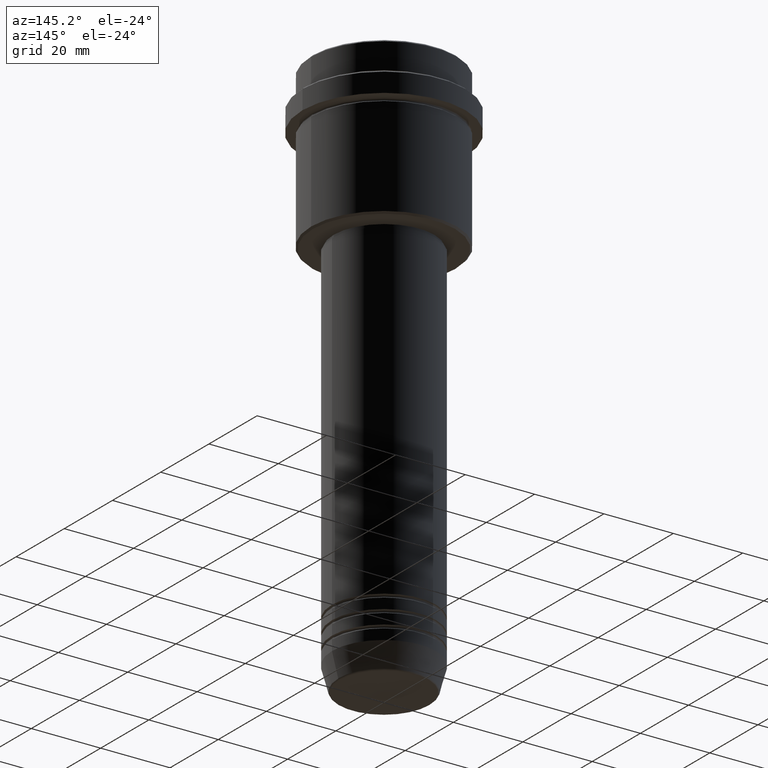
[diagram: clean part render]
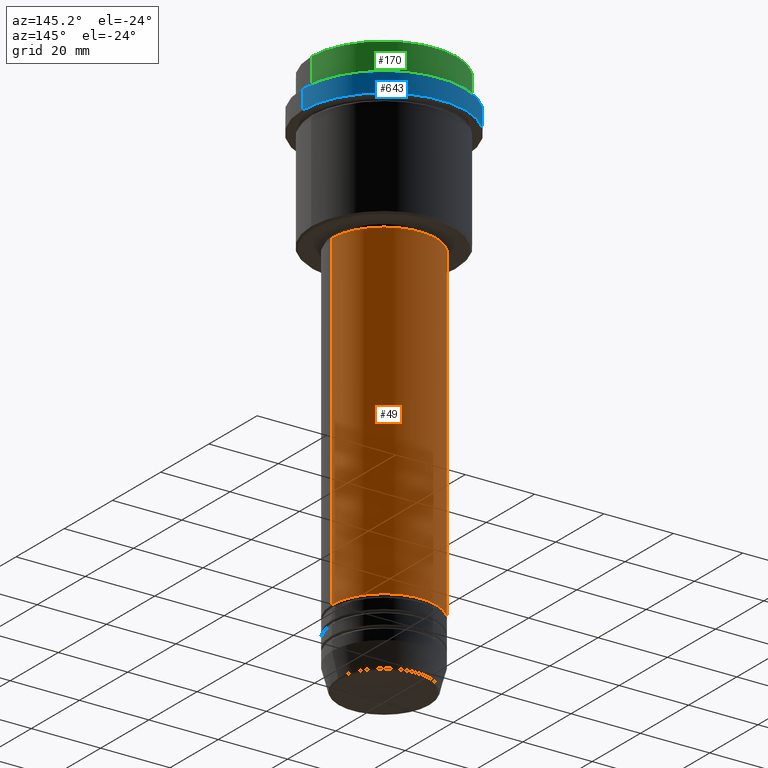
[diagram: same view with three faces highlighted in distinct colors, each labeled with its STEP entity id]
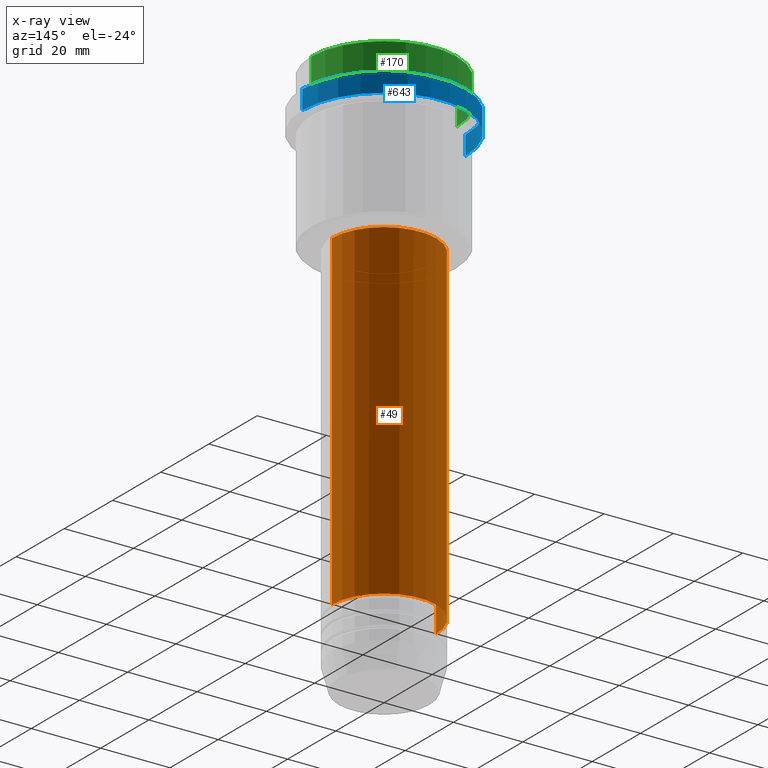
[diagram: x-ray of the same camera — body ghosted, the three highlighted faces saturated]
A machine part, auxiliary view with three faces highlighted in distinct colors.
The next image is the same camera in x-ray (body ghosted, the three faces saturated) — at least one of them is partly hidden behind the body in this view.
Their STEP definitions:

[orange] entity #49 — the highlighted cylindrical surface (partial cylindrical patch) has radius 15 mm, axis along (-0, -0, 1).
#49 = ADVANCED_FACE ( 'NONE', ( #297 ), #413, .T. ) ;
#78 = DIRECTION ( 'NONE',  ( 1.000000000000000000, 0.000000000000000000, 0.000000000000000000 ) ) ;
#88 = VECTOR ( 'NONE', #636, 1000.000000000000000 ) ;
#179 = CARTESIAN_POINT ( 'NONE',  ( 0.000000000000000000, 0.000000000000000000, -45.99999999999998579 ) ) ;
#212 = CARTESIAN_POINT ( 'NONE',  ( -15.00000000000000000, 1.836970198721029589E-15, -45.99999999999998579 ) ) ;
#259 = ORIENTED_EDGE ( 'NONE', *, *, #1153, .T. ) ;
#260 = VERTEX_POINT ( 'NONE', #1124 ) ;
#286 = DIRECTION ( 'NONE',  ( 1.000000000000000000, 0.000000000000000000, 0.000000000000000000 ) ) ;
#297 = FACE_OUTER_BOUND ( 'NONE', #675, .T. ) ;
#341 = VERTEX_POINT ( 'NONE', #598 ) ;
#383 = CARTESIAN_POINT ( 'NONE',  ( 15.00000000000000000, 0.000000000000000000, 0.000000000000000000 ) ) ;
#413 = CYLINDRICAL_SURFACE ( 'NONE', #429, 15.00000000000000000 ) ;
#429 = AXIS2_PLACEMENT_3D ( 'NONE', #640, #647, #78 ) ;
#463 = LINE ( 'NONE', #1014, #745 ) ;
#469 = VERTEX_POINT ( 'NONE', #212 ) ;
#492 = CARTESIAN_POINT ( 'NONE',  ( -15.00000000000000000, 1.836970198721029589E-15, -140.9999999999999147 ) ) ;
#584 = DIRECTION ( 'NONE',  ( -0.000000000000000000, -0.000000000000000000, 1.000000000000000000 ) ) ;
#598 = CARTESIAN_POINT ( 'NONE',  ( 15.00000000000000000, 0.000000000000000000, -45.99999999999998579 ) ) ;
#636 = DIRECTION ( 'NONE',  ( -0.000000000000000000, -0.000000000000000000, 1.000000000000000000 ) ) ;
#640 = CARTESIAN_POINT ( 'NONE',  ( 0.000000000000000000, 0.000000000000000000, 0.000000000000000000 ) ) ;
#647 = DIRECTION ( 'NONE',  ( -0.000000000000000000, -0.000000000000000000, 1.000000000000000000 ) ) ;
#675 = EDGE_LOOP ( 'NONE', ( #1228, #259, #805, #950 ) ) ;
#701 = AXIS2_PLACEMENT_3D ( 'NONE', #835, #1167, #286 ) ;
#740 = DIRECTION ( 'NONE',  ( -0.000000000000000000, -0.000000000000000000, 1.000000000000000000 ) ) ;
#745 = VECTOR ( 'NONE', #584, 1000.000000000000000 ) ;
#805 = ORIENTED_EDGE ( 'NONE', *, *, #1359, .F. ) ;
#835 = CARTESIAN_POINT ( 'NONE',  ( 0.000000000000000000, 0.000000000000000000, -140.9999999999999147 ) ) ;
#950 = ORIENTED_EDGE ( 'NONE', *, *, #1372, .F. ) ;
#1014 = CARTESIAN_POINT ( 'NONE',  ( -15.00000000000000000, 1.836970198721029589E-15, 0.000000000000000000 ) ) ;
#1017 = EDGE_CURVE ( 'NONE', #260, #1216, #1160, .T. ) ;
#1068 = LINE ( 'NONE', #383, #88 ) ;
#1074 = CIRCLE ( 'NONE', #1388, 15.00000000000000000 ) ;
#1124 = CARTESIAN_POINT ( 'NONE',  ( 15.00000000000000000, 0.000000000000000000, -140.9999999999999147 ) ) ;
#1153 = EDGE_CURVE ( 'NONE', #1216, #469, #463, .T. ) ;
#1160 = CIRCLE ( 'NONE', #701, 15.00000000000000000 ) ;
#1167 = DIRECTION ( 'NONE',  ( -0.000000000000000000, -0.000000000000000000, 1.000000000000000000 ) ) ;
#1216 = VERTEX_POINT ( 'NONE', #492 ) ;
#1228 = ORIENTED_EDGE ( 'NONE', *, *, #1017, .T. ) ;
#1359 = EDGE_CURVE ( 'NONE', #341, #469, #1074, .T. ) ;
#1372 = EDGE_CURVE ( 'NONE', #260, #341, #1068, .T. ) ;
#1385 = DIRECTION ( 'NONE',  ( 1.000000000000000000, 0.000000000000000000, 0.000000000000000000 ) ) ;
#1388 = AXIS2_PLACEMENT_3D ( 'NONE', #179, #740, #1385 ) ;

[blue] entity #643 — the highlighted cylindrical surface (partial cylindrical patch) has radius 23.5 mm, axis along (-0, -0, 1).
#7 = DIRECTION ( 'NONE',  ( -0.000000000000000000, -0.000000000000000000, 1.000000000000000000 ) ) ;
#30 = VERTEX_POINT ( 'NONE', #632 ) ;
#47 = VERTEX_POINT ( 'NONE', #1396 ) ;
#62 = DIRECTION ( 'NONE',  ( -0.000000000000000000, -0.000000000000000000, 1.000000000000000000 ) ) ;
#75 = DIRECTION ( 'NONE',  ( 1.000000000000000000, 0.000000000000000000, 0.000000000000000000 ) ) ;
#140 = VERTEX_POINT ( 'NONE', #1220 ) ;
#145 = EDGE_CURVE ( 'NONE', #1186, #140, #438, .T. ) ;
#184 = CARTESIAN_POINT ( 'NONE',  ( 0.000000000000000000, 0.000000000000000000, -15.00000000000000000 ) ) ;
#239 = CARTESIAN_POINT ( 'NONE',  ( 0.000000000000000000, 0.000000000000000000, 0.000000000000000000 ) ) ;
#242 = ORIENTED_EDGE ( 'NONE', *, *, #1296, .T. ) ;
#275 = AXIS2_PLACEMENT_3D ( 'NONE', #184, #62, #844 ) ;
#338 = DIRECTION ( 'NONE',  ( -0.000000000000000000, -0.000000000000000000, 1.000000000000000000 ) ) ;
#344 = EDGE_CURVE ( 'NONE', #47, #30, #940, .T. ) ;
#353 = ORIENTED_EDGE ( 'NONE', *, *, #344, .T. ) ;
#396 = DIRECTION ( 'NONE',  ( 0.000000000000000000, 0.000000000000000000, -1.000000000000000000 ) ) ;
#437 = DIRECTION ( 'NONE',  ( 1.000000000000000000, 0.000000000000000000, 0.000000000000000000 ) ) ;
#438 = LINE ( 'NONE', #668, #839 ) ;
#452 = CIRCLE ( 'NONE', #275, 23.50000000000000355 ) ;
#511 = EDGE_LOOP ( 'NONE', ( #242, #353, #635, #739 ) ) ;
#611 = CARTESIAN_POINT ( 'NONE',  ( -23.50000000000000000, 2.877919977996280320E-15, 0.000000000000000000 ) ) ;
#632 = CARTESIAN_POINT ( 'NONE',  ( -23.50000000000000000, 2.877919977996280320E-15, -9.500000000000014211 ) ) ;
#635 = ORIENTED_EDGE ( 'NONE', *, *, #1332, .T. ) ;
#643 = ADVANCED_FACE ( 'NONE', ( #1308 ), #883, .T. ) ;
#668 = CARTESIAN_POINT ( 'NONE',  ( 23.50000000000000000, 0.000000000000000000, 0.000000000000000000 ) ) ;
#739 = ORIENTED_EDGE ( 'NONE', *, *, #145, .F. ) ;
#834 = AXIS2_PLACEMENT_3D ( 'NONE', #239, #338, #437 ) ;
#838 = AXIS2_PLACEMENT_3D ( 'NONE', #1367, #396, #75 ) ;
#839 = VECTOR ( 'NONE', #7, 1000.000000000000000 ) ;
#844 = DIRECTION ( 'NONE',  ( 1.000000000000000000, 0.000000000000000000, 0.000000000000000000 ) ) ;
#883 = CYLINDRICAL_SURFACE ( 'NONE', #834, 23.50000000000000000 ) ;
#884 = VECTOR ( 'NONE', #1348, 1000.000000000000000 ) ;
#940 = LINE ( 'NONE', #611, #884 ) ;
#1186 = VERTEX_POINT ( 'NONE', #1345 ) ;
#1220 = CARTESIAN_POINT ( 'NONE',  ( 23.50000000000000000, 0.000000000000000000, -9.500000000000014211 ) ) ;
#1271 = CIRCLE ( 'NONE', #838, 23.50000000000000000 ) ;
#1296 = EDGE_CURVE ( 'NONE', #1186, #47, #452, .T. ) ;
#1308 = FACE_OUTER_BOUND ( 'NONE', #511, .T. ) ;
#1332 = EDGE_CURVE ( 'NONE', #30, #140, #1271, .T. ) ;
#1345 = CARTESIAN_POINT ( 'NONE',  ( 23.50000000000000355, 0.000000000000000000, -15.00000000000000000 ) ) ;
#1348 = DIRECTION ( 'NONE',  ( -0.000000000000000000, -0.000000000000000000, 1.000000000000000000 ) ) ;
#1367 = CARTESIAN_POINT ( 'NONE',  ( 0.000000000000000000, 0.000000000000000000, -9.500000000000014211 ) ) ;
#1396 = CARTESIAN_POINT ( 'NONE',  ( -23.50000000000000711, 2.877919977996281109E-15, -15.00000000000000000 ) ) ;

[green] entity #170 — the highlighted cylindrical surface (partial cylindrical patch) has radius 21 mm, axis along (-0, -0, 1).
#15 = CIRCLE ( 'NONE', #1387, 21.00000000000000000 ) ;
#18 = CARTESIAN_POINT ( 'NONE',  ( 0.000000000000000000, 0.000000000000000000, 0.000000000000000000 ) ) ;
#25 = EDGE_CURVE ( 'NONE', #825, #136, #587, .T. ) ;
#39 = ORIENTED_EDGE ( 'NONE', *, *, #25, .T. ) ;
#92 = VERTEX_POINT ( 'NONE', #290 ) ;
#94 = EDGE_CURVE ( 'NONE', #842, #92, #15, .T. ) ;
#136 = VERTEX_POINT ( 'NONE', #526 ) ;
#148 = ORIENTED_EDGE ( 'NONE', *, *, #94, .T. ) ;
#153 = VECTOR ( 'NONE', #1389, 1000.000000000000000 ) ;
#170 = ADVANCED_FACE ( 'NONE', ( #575 ), #563, .T. ) ;
#182 = CARTESIAN_POINT ( 'NONE',  ( 0.000000000000000000, 0.000000000000000000, -7.999999999999998224 ) ) ;
#188 = CARTESIAN_POINT ( 'NONE',  ( 0.000000000000000000, 0.000000000000000000, -0.4999999999999970024 ) ) ;
#241 = DIRECTION ( 'NONE',  ( -0.000000000000000000, -0.000000000000000000, 1.000000000000000000 ) ) ;
#282 = LINE ( 'NONE', #1394, #153 ) ;
#290 = CARTESIAN_POINT ( 'NONE',  ( -21.00000000000000000, 2.571758278209441661E-15, -7.999999999999998224 ) ) ;
#300 = EDGE_CURVE ( 'NONE', #92, #825, #714, .T. ) ;
#360 = AXIS2_PLACEMENT_3D ( 'NONE', #18, #241, #1116 ) ;
#526 = CARTESIAN_POINT ( 'NONE',  ( 21.00000000000000000, 0.000000000000000000, -0.4999999999999970024 ) ) ;
#563 = CYLINDRICAL_SURFACE ( 'NONE', #360, 21.00000000000000000 ) ;
#565 = EDGE_LOOP ( 'NONE', ( #148, #867, #39, #1299 ) ) ;
#575 = FACE_OUTER_BOUND ( 'NONE', #565, .T. ) ;
#587 = CIRCLE ( 'NONE', #1318, 21.00000000000000000 ) ;
#714 = LINE ( 'NONE', #1255, #1069 ) ;
#732 = DIRECTION ( 'NONE',  ( -0.000000000000000000, -0.000000000000000000, 1.000000000000000000 ) ) ;
#825 = VERTEX_POINT ( 'NONE', #1040 ) ;
#842 = VERTEX_POINT ( 'NONE', #1030 ) ;
#853 = EDGE_CURVE ( 'NONE', #842, #136, #282, .T. ) ;
#867 = ORIENTED_EDGE ( 'NONE', *, *, #300, .T. ) ;
#982 = DIRECTION ( 'NONE',  ( 0.000000000000000000, 0.000000000000000000, -1.000000000000000000 ) ) ;
#1030 = CARTESIAN_POINT ( 'NONE',  ( 21.00000000000000000, 0.000000000000000000, -7.999999999999998224 ) ) ;
#1040 = CARTESIAN_POINT ( 'NONE',  ( -21.00000000000000000, 2.571758278209441661E-15, -0.4999999999999970024 ) ) ;
#1069 = VECTOR ( 'NONE', #1233, 1000.000000000000000 ) ;
#1088 = DIRECTION ( 'NONE',  ( 1.000000000000000000, 0.000000000000000000, 0.000000000000000000 ) ) ;
#1116 = DIRECTION ( 'NONE',  ( 1.000000000000000000, 0.000000000000000000, 0.000000000000000000 ) ) ;
#1233 = DIRECTION ( 'NONE',  ( -0.000000000000000000, -0.000000000000000000, 1.000000000000000000 ) ) ;
#1255 = CARTESIAN_POINT ( 'NONE',  ( -21.00000000000000000, 2.571758278209441661E-15, 0.000000000000000000 ) ) ;
#1286 = DIRECTION ( 'NONE',  ( 1.000000000000000000, 0.000000000000000000, 0.000000000000000000 ) ) ;
#1299 = ORIENTED_EDGE ( 'NONE', *, *, #853, .F. ) ;
#1318 = AXIS2_PLACEMENT_3D ( 'NONE', #188, #982, #1286 ) ;
#1387 = AXIS2_PLACEMENT_3D ( 'NONE', #182, #732, #1088 ) ;
#1389 = DIRECTION ( 'NONE',  ( -0.000000000000000000, -0.000000000000000000, 1.000000000000000000 ) ) ;
#1394 = CARTESIAN_POINT ( 'NONE',  ( 21.00000000000000000, 0.000000000000000000, 0.000000000000000000 ) ) ;